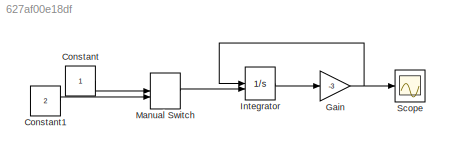
MODEL slx_627af00e18df
KIND model
CONFIG AbsTol = auto
CONFIG EnableMultiTasking = off
CONFIG FixedStep = auto
CONFIG MaxStep = auto
CONFIG MinStep = auto
CONFIG RelTol = 1e-3
CONFIG SampleTimeConstraint = Unconstrained
CONFIG SolverName = VariableStepAuto
CONFIG StartTime = 0.0
CONFIG StopTime = 10.0
BLOCK [Constant] Constant
BLOCK [Constant] Constant1
  Value = 2
BLOCK [Gain] Gain
  Gain = -3
BLOCK [Integrator] Integrator
  InitialCondition = 1
  InitialConditionSource = external
BLOCK [ManualSwitch] Manual Switch
  CurrentSetting = 0
BLOCK [Scope] Scope
  Floating = off
  NumInputPorts = 1
  ScopeSpecificationString = Simulink.scopes.TimeScopeBlockCfg('CurrentConfiguration', extmgr.ConfigurationSet(extmgr.Configuration('Core','General UI',true),extmgr.Configuration('Core','Source UI',true),extmgr.Configuration('Sources','WiredSimulink',true),extmgr.Configuration('Visuals','Time Domain',true,'SerializedDisplays',{struct('MinYLimReal','-6.75','MaxYLimReal','0.75','YLabelReal','','MinYLimMag','0.00000','MaxYLimMag...<+1361ch>
LINE Constant1:1 -> Manual Switch:2
LINE Constant:1 -> Manual Switch:1
NET Gain:1 -> Integrator:1, Scope:1
LINE Integrator:1 -> Gain:1
LINE Manual Switch:1 -> Integrator:2
note: NET lines group one-source signal fan-out (src -> all destinations, sorted); 1:1 wires keep LINE
